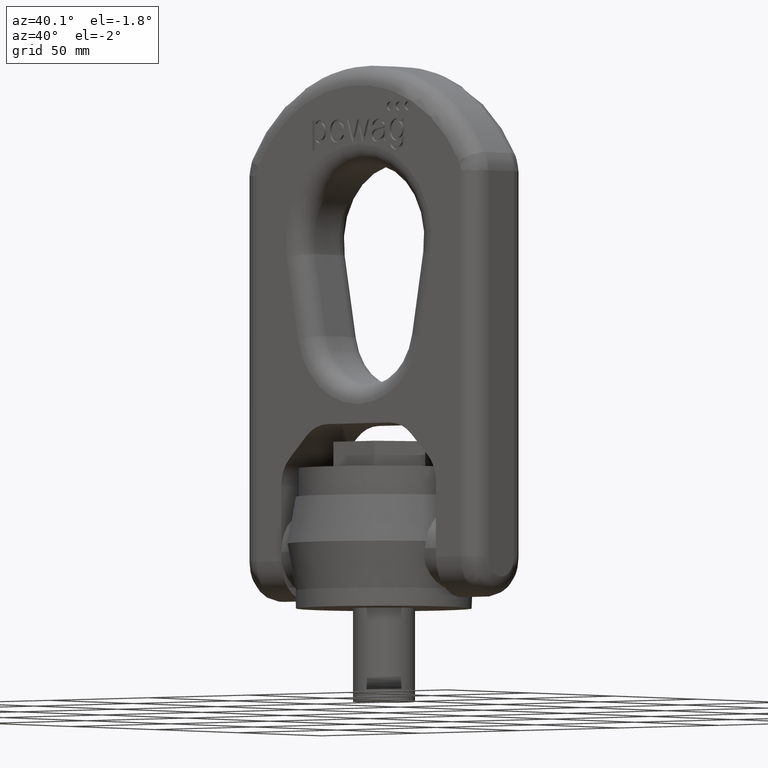
[diagram: clean part render]
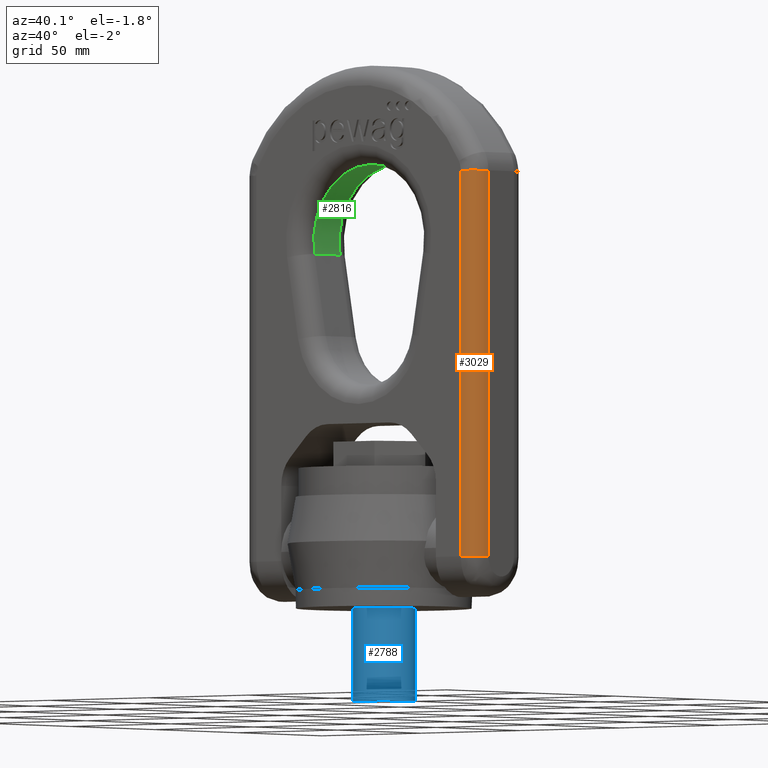
[diagram: same view with three faces highlighted in distinct colors, each labeled with its STEP entity id]
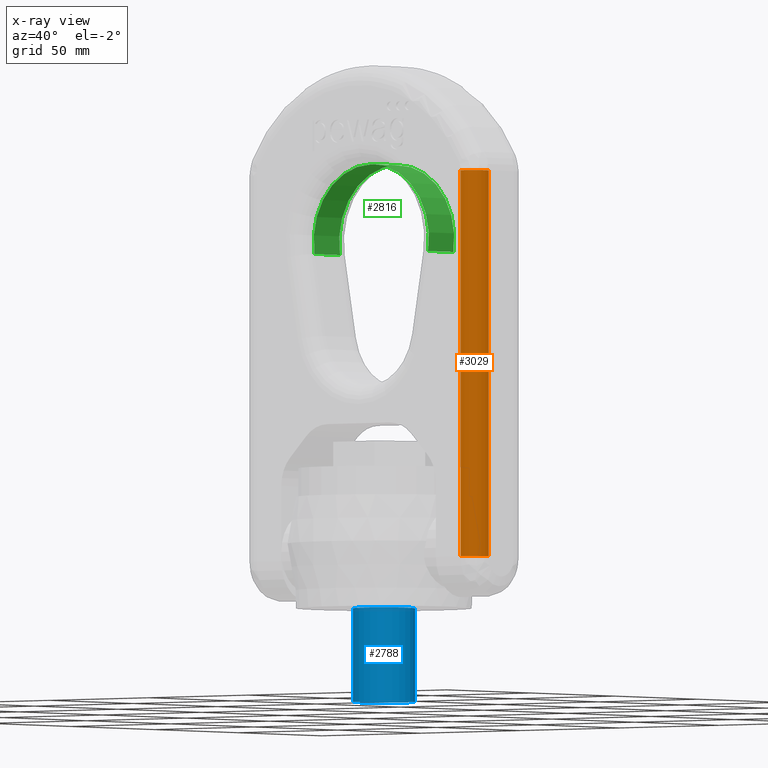
[diagram: x-ray of the same camera — body ghosted, the three highlighted faces saturated]
A machine part, auxiliary view with three faces highlighted in distinct colors.
The next image is the same camera in x-ray (body ghosted, the three faces saturated) — at least one of them is partly hidden behind the body in this view.
Their STEP definitions:

[orange] entity #3029 — the highlighted cylindrical surface (edge-blend (fillet) strip) has radius 7.6 mm, axis along (0, 0, -1).
#1776=LINE('',#7077,#2084);
#1869=LINE('',#7758,#2177);
#2084=VECTOR('',#6199,1.);
#2177=VECTOR('',#6356,1.);
#2654=FACE_OUTER_BOUND('',#3422,.T.);
#3029=ADVANCED_FACE('',(#2654),#3063,.T.);
#3063=CYLINDRICAL_SURFACE('',#6045,7.6);
#3422=EDGE_LOOP('',(#4653,#4654,#4655,#4656));
#4653=ORIENTED_EDGE('',*,*,#5737,.F.);
#4654=ORIENTED_EDGE('',*,*,#5180,.F.);
#4655=ORIENTED_EDGE('',*,*,#5739,.F.);
#4656=ORIENTED_EDGE('',*,*,#5367,.F.);
#4742=VERTEX_POINT('',#7066);
#4747=VERTEX_POINT('',#7078);
#4923=VERTEX_POINT('',#7752);
#4926=VERTEX_POINT('',#7757);
#5180=EDGE_CURVE('',#4742,#4747,#1776,.T.);
#5367=EDGE_CURVE('',#4926,#4923,#1869,.T.);
#5737=EDGE_CURVE('',#4747,#4926,#5815,.T.);
#5739=EDGE_CURVE('',#4923,#4742,#5817,.T.);
#5815=CIRCLE('',#6042,7.6);
#5817=CIRCLE('',#6044,7.6);
#6042=AXIS2_PLACEMENT_3D('',#9775,#6892,#6893);
#6044=AXIS2_PLACEMENT_3D('',#9809,#6896,#6897);
#6045=AXIS2_PLACEMENT_3D('',#9810,#6898,#6899);
#6199=DIRECTION('',(-8.28524645242654E-17,0.,1.));
#6356=DIRECTION('',(8.28524645242654E-17,0.,-1.));
#6892=DIRECTION('',(0.,0.,1.));
#6893=DIRECTION('',(-1.,0.,0.));
#6896=DIRECTION('',(0.,0.,-1.));
#6897=DIRECTION('',(-1.,0.,0.));
#6898=DIRECTION('',(8.28524645242654E-17,0.,-1.));
#6899=DIRECTION('',(-1.,0.,0.));
#7066=CARTESIAN_POINT('',(51.4,-15.2,18.6999999999999));
#7077=CARTESIAN_POINT('',(51.4,-15.2,167.477855090295));
#7078=CARTESIAN_POINT('',(51.4,-15.2,167.477855090295));
#7752=CARTESIAN_POINT('',(59.,-7.6,18.6999999999999));
#7757=CARTESIAN_POINT('',(59.,-7.6,167.477855090295));
#7758=CARTESIAN_POINT('',(59.,-7.6,18.6999999999999));
#9775=CARTESIAN_POINT('',(51.4,-7.6,167.477855090295));
#9809=CARTESIAN_POINT('',(51.4,-7.6,18.6999999999999));
#9810=CARTESIAN_POINT('',(51.4,-7.6,144.197368421053));

[blue] entity #2788 — the highlighted cylindrical surface (bore or boss wall) has radius 12 mm, axis along (0, 0, 1).
#2788=ADVANCED_FACE('',(#3073,#3074),#3041,.T.);
#3041=CYLINDRICAL_SURFACE('',#5834,12.);
#3073=FACE_BOUND('',#3141,.T.);
#3074=FACE_BOUND('',#3142,.T.);
#3141=EDGE_LOOP('',(#3437));
#3142=EDGE_LOOP('',(#3438));
#3437=ORIENTED_EDGE('',*,*,#5120,.F.);
#3438=ORIENTED_EDGE('',*,*,#5119,.T.);
#4699=VERTEX_POINT('',#6943);
#4700=VERTEX_POINT('',#6946);
#5119=EDGE_CURVE('',#4699,#4699,#5751,.T.);
#5120=EDGE_CURVE('',#4700,#4700,#5752,.T.);
#5751=CIRCLE('',#5831,12.);
#5752=CIRCLE('',#5833,12.);
#5831=AXIS2_PLACEMENT_3D('',#6942,#6072,#6073);
#5833=AXIS2_PLACEMENT_3D('',#6945,#6076,#6077);
#5834=AXIS2_PLACEMENT_3D('',#6947,#6078,#6079);
#6072=DIRECTION('',(0.,0.,-1.));
#6073=DIRECTION('',(-6.12323399573677E-17,1.,0.));
#6076=DIRECTION('',(0.,0.,-1.));
#6077=DIRECTION('',(-6.12323399573677E-17,1.,0.));
#6078=DIRECTION('',(0.,0.,1.));
#6079=DIRECTION('',(1.,0.,0.));
#6942=CARTESIAN_POINT('',(0.,0.,0.));
#6943=CARTESIAN_POINT('',(-7.34788079488412E-16,12.,0.));
#6945=CARTESIAN_POINT('',(0.,0.,-36.));
#6946=CARTESIAN_POINT('',(-7.34788079488412E-16,12.,-36.));
#6947=CARTESIAN_POINT('',(0.,0.,-36.));

[green] entity #2816 — the highlighted cylindrical surface (partial cylindrical patch) has radius 29 mm, axis along (0, 1, 0).
#1858=LINE('',#7726,#2166);
#1860=LINE('',#7732,#2168);
#2166=VECTOR('',#6329,1.);
#2168=VECTOR('',#6335,1.);
#2456=FACE_OUTER_BOUND('',#3194,.T.);
#2816=ADVANCED_FACE('',(#2456),#3045,.F.);
#3045=CYLINDRICAL_SURFACE('',#5898,29.);
#3194=EDGE_LOOP('',(#3723,#3724,#3725,#3726));
#3723=ORIENTED_EDGE('',*,*,#5352,.T.);
#3724=ORIENTED_EDGE('',*,*,#5354,.T.);
#3725=ORIENTED_EDGE('',*,*,#5355,.F.);
#3726=ORIENTED_EDGE('',*,*,#5356,.T.);
#4913=VERTEX_POINT('',#7725);
#4914=VERTEX_POINT('',#7727);
#4915=VERTEX_POINT('',#7731);
#4916=VERTEX_POINT('',#7733);
#5352=EDGE_CURVE('',#4914,#4913,#1858,.T.);
#5354=EDGE_CURVE('',#4913,#4915,#5787,.T.);
#5355=EDGE_CURVE('',#4916,#4915,#1860,.T.);
#5356=EDGE_CURVE('',#4916,#4914,#5788,.T.);
#5787=CIRCLE('',#5896,29.);
#5788=CIRCLE('',#5897,29.);
#5896=AXIS2_PLACEMENT_3D('',#7730,#6333,#6334);
#5897=AXIS2_PLACEMENT_3D('',#7734,#6336,#6337);
#5898=AXIS2_PLACEMENT_3D('',#7735,#6338,#6339);
#6329=DIRECTION('',(0.,1.,0.));
#6333=DIRECTION('',(2.34291072916505E-15,1.,0.));
#6334=DIRECTION('',(-1.,2.33290398493433E-15,0.));
#6335=DIRECTION('',(0.,1.,0.));
#6336=DIRECTION('',(0.,-1.,0.));
#6337=DIRECTION('',(0.,0.,-1.));
#6338=DIRECTION('',(0.,1.,0.));
#6339=DIRECTION('',(0.,0.,1.));
#7725=CARTESIAN_POINT('',(-28.5594248373541,7.60000000000009,136.964202847659));
#7726=CARTESIAN_POINT('',(-28.5594248373541,-15.2,136.964202847659));
#7727=CARTESIAN_POINT('',(-28.5594248373541,-7.6,136.964202847659));
#7730=CARTESIAN_POINT('',(0.,7.59999999999998,142.));
#7731=CARTESIAN_POINT('',(28.5594248373541,7.59999999999992,136.964202847659));
#7732=CARTESIAN_POINT('',(28.5594248373541,-15.2,136.964202847659));
#7733=CARTESIAN_POINT('',(28.5594248373541,-7.6,136.964202847659));
#7734=CARTESIAN_POINT('',(0.,-7.6,142.));
#7735=CARTESIAN_POINT('',(0.,-15.2,142.));